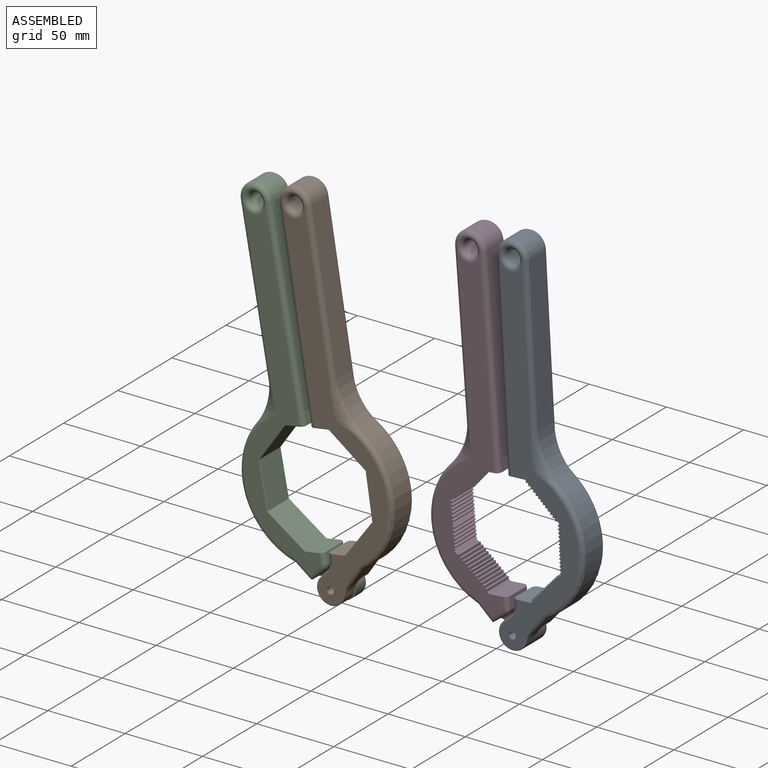
[diagram: assembled view]
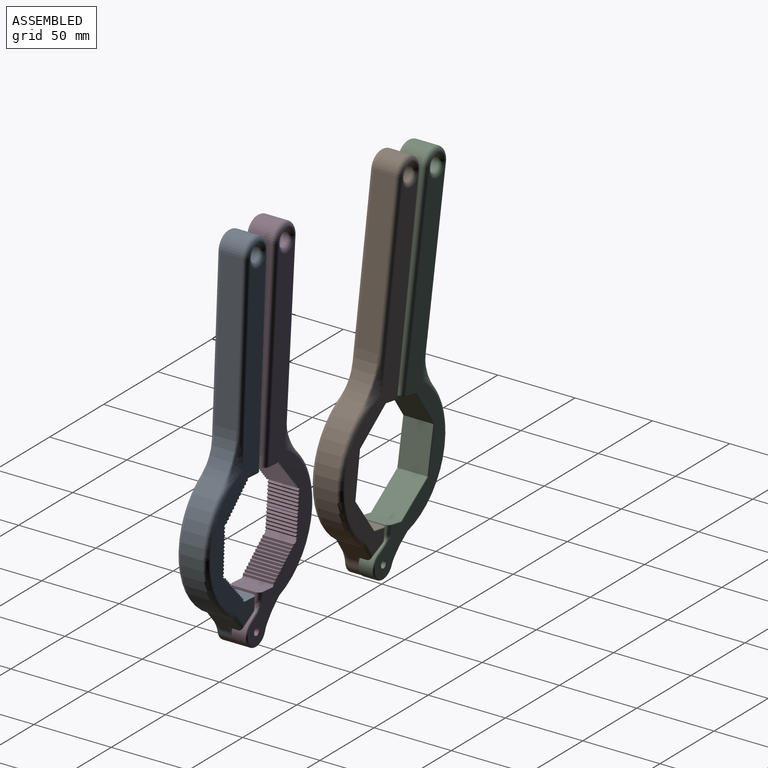
[diagram: assembled view, second angle]
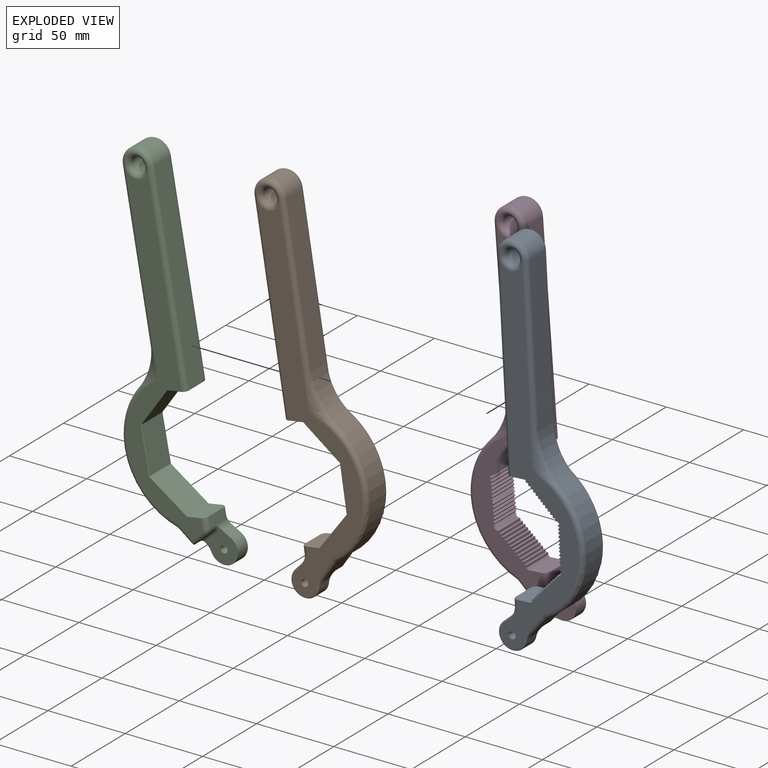
[diagram: exploded view]
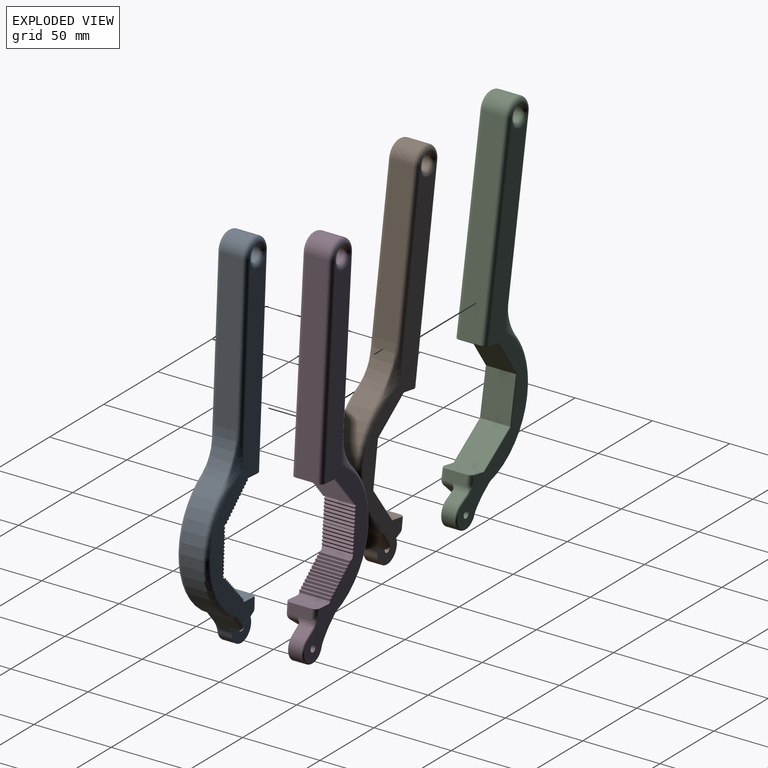
[diagram: exploded view, second angle]
ASSEMBLY  parts=4 mates=2
PART A: 135 faces, bbox 63.3x31.1x242 mm
  f0: plane 208.67x43.81mm, normal (0,-1,0), area 2878.3mm2, adj f3,f4,f5,f6,f7,f8,f9,f10
  f1: bspline ~29.03x14.84mm, area 120mm2, adj f105,f106,f119,f120
  f2: bspline ~29.03x14.84mm, area 119.6mm2, adj f113,f114,f120,f121
  f3: plane 20x0.88mm, normal (0.71,0,-0.71), area 24.8mm2, adj f0,f4,f97,f99
  f4: plane 20x1.54mm, normal (0,0,-1), area 30.7mm2, adj f0,f3,f5,f99
  f5: plane 20x1.54mm, normal (1,0,0), area 30.8mm2, adj f0,f4,f6,f99
  f6: plane 20x1.54mm, normal (0,0,-1), area 30.7mm2, adj f0,f5,f7,f99
  f7: plane 20x1.54mm, normal (1,0,0), area 30.8mm2, adj f0,f6,f8,f99
  f8: plane 20x1.54mm, normal (0,0,-1), area 30.7mm2, adj f0,f7,f9,f99
  f9: plane 20x1.54mm, normal (1,0,0), area 30.8mm2, adj f0,f8,f10,f99
  f10: plane 20x1.54mm, normal (0,0,-1), area 30.7mm2, adj f0,f9,f11,f99
  f11: plane 20x1.54mm, normal (1,0,0), area 30.8mm2, adj f0,f10,f12,f99
  f12: plane 20x1.54mm, normal (0,0,-1), area 30.7mm2, adj f0,f11,f13,f99
  f13: plane 20x1.54mm, normal (1,0,0), area 30.8mm2, adj f0,f12,f14,f99
  f14: plane 20x1.54mm, normal (0,0,-1), area 30.7mm2, adj f0,f13,f15,f99
  f15: plane 20x1.54mm, normal (1,0,0), area 30.8mm2, adj f0,f14,f16,f99
  f16: plane 20x1.31mm, normal (-0.17,0,-0.99), area 26.6mm2, adj f0,f15,f17,f99
  f17: plane 20x1.54mm, normal (1,0,0), area 30.8mm2, adj f0,f16,f18,f99
  f18: plane 20x1.54mm, normal (0,0,-1), area 30.7mm2, adj f0,f17,f19,f99
  f19: plane 20x1.54mm, normal (1,0,0), area 30.8mm2, adj f0,f18,f20,f99
  f20: plane 20x1.54mm, normal (0,0,-1), area 30.7mm2, adj f0,f19,f21,f99
  f21: plane 20x1.54mm, normal (1,0,0), area 30.8mm2, adj f0,f20,f22,f99
  f22: plane 20x1.54mm, normal (0,0,-1), area 30.7mm2, adj f0,f21,f23,f99
  f23: plane 20x1.54mm, normal (1,0,0), area 30.8mm2, adj f0,f22,f24,f99
  f24: plane 20x1.54mm, normal (0,0,-1), area 30.7mm2, adj f0,f23,f25,f99
  f25: plane 20x1.54mm, normal (1,0,0), area 30.8mm2, adj f0,f24,f26,f99
  f26: plane 20x1.54mm, normal (0,0,-1), area 30.7mm2, adj f0,f25,f27,f99
  f27: plane 20x1.54mm, normal (1,0,0), area 30.8mm2, adj f0,f26,f28,f99
  f28: plane 20x1.54mm, normal (0,0,-1), area 30.7mm2, adj f0,f27,f29,f99
  f29: plane 20x1.49mm, normal (1,0,0), area 29.7mm2, adj f0,f28,f30,f99
  f30: plane 20x0.06mm, normal (0.71,0,-0.71), area 1.8mm2, adj f0,f29,f31,f99
  f31: plane 20x12.44mm, normal (-0.01,0,-1), area 245mm2, adj f0,f30,f32,f99,f109,f117
  f32: plane 127.52x14mm, normal (1,0,-0.01), area 1785.4mm2, adj f31,f33,f109,f117
  f33: cylinder r=10.06mm len=20.12mm, axis (0,1,0), area 442.5mm2, adj f32,f34,f107,f116
  f34: plane 99.13x14mm, normal (-1,0,0.01), area 1387.9mm2, adj f33,f106,f114,f120
  f35: cylinder r=47.91mm len=78.58mm, axis (0,1,0), area 1311.3mm2, adj f36,f105,f113,f120
  f36: plane 14.14x11.53mm, normal (-0.74,0,-0.67), area 193.2mm2, adj f35,f37,f103,f104,f112,f122,f132
  f37: plane 10.26x6.57mm, normal (0.54,0,-0.84), area 63.3mm2, adj f36,f111,f126,f132
  f38: plane 14x6.96mm, normal (1,0,0.01), area 96.2mm2, adj f39,f110,f118,f124,f126,f134
  f39: plane 20.03x11.83mm, normal (0.01,0,1), area 232.1mm2, adj f0,f38,f40,f99,f110,f118
  f40: plane 20x1.07mm, normal (0.71,0,0.7), area 30.2mm2, adj f0,f39,f41,f99
  f41: plane 20x0mm, normal (0.01,0,1), area 0mm2, adj f0,f40,f42,f99
  f42: plane 20x1.54mm, normal (1,0,-0.01), area 30.7mm2, adj f0,f41,f43,f99
  f43: plane 20x1.54mm, normal (0.01,0,1), area 30.8mm2, adj f0,f42,f44,f99
  f44: plane 20x1.54mm, normal (1,0,-0.01), area 30.7mm2, adj f0,f43,f45,f99
  f45: plane 20x1.54mm, normal (0.01,0,1), area 30.8mm2, adj f0,f44,f46,f99
  f46: plane 20x1.54mm, normal (1,0,-0.01), area 30.7mm2, adj f0,f45,f47,f99
  f47: plane 20x1.54mm, normal (0.01,0,1), area 30.8mm2, adj f0,f46,f48,f99
  f48: plane 20x1.54mm, normal (1,0,-0.01), area 30.7mm2, adj f0,f47,f49,f99
  f49: plane 20x1.54mm, normal (0.01,0,1), area 30.8mm2, adj f0,f48,f50,f99
  f50: plane 20x1.54mm, normal (1,0,-0.01), area 30.7mm2, adj f0,f49,f51,f99
  f51: plane 20x1.54mm, normal (0.01,0,1), area 30.8mm2, adj f0,f50,f52,f99
  f52: plane 20x1.54mm, normal (1,0,-0.01), area 30.7mm2, adj f0,f51,f53,f99
  f53: plane 20x1.54mm, normal (0.01,0,1), area 30.8mm2, adj f0,f52,f54,f99
  f54: plane 20x1.31mm, normal (0.98,0,-0.18), area 26.6mm2, adj f0,f53,f55,f99
  f55: plane 20x1.54mm, normal (0.01,0,1), area 30.8mm2, adj f0,f54,f56,f99
  f56: plane 20x1.54mm, normal (1,0,-0.01), area 30.7mm2, adj f0,f55,f57,f99
  f57: plane 20x1.54mm, normal (0.01,0,1), area 30.8mm2, adj f0,f56,f58,f99
  f58: plane 20x1.54mm, normal (1,0,-0.01), area 30.7mm2, adj f0,f57,f59,f99
  f59: plane 20x1.54mm, normal (0.01,0,1), area 30.8mm2, adj f0,f58,f60,f99
  f60: plane 20x1.54mm, normal (1,0,-0.01), area 30.7mm2, adj f0,f59,f61,f99
  f61: plane 20x1.54mm, normal (0.01,0,1), area 30.8mm2, adj f0,f60,f62,f99
  f62: plane 20x1.54mm, normal (1,0,-0.01), area 30.7mm2, adj f0,f61,f63,f99
  f63: plane 20x1.54mm, normal (0.01,0,1), area 30.8mm2, adj f0,f62,f64,f99
  f64: plane 20x1.54mm, normal (1,0,-0.01), area 30.7mm2, adj f0,f63,f65,f99
  f65: plane 20x1.54mm, normal (0.01,0,1), area 30.8mm2, adj f0,f64,f66,f99
  f66: plane 20x1.55mm, normal (0.71,0,0.7), area 43.5mm2, adj f0,f65,f67,f99
  f67: plane 20x0.01mm, normal (-0.01,0,-1), area 0.2mm2, adj f0,f66,f68,f99
  f68: plane 20x0.05mm, normal (0.71,0,0.7), area 1.5mm2, adj f0,f67,f69,f99
  f69: plane 20x1.09mm, normal (0.14,0,-0.99), area 22mm2, adj f0,f68,f70,f99
  f70: plane 20x1.09mm, normal (0.71,0,0.71), area 30.8mm2, adj f0,f69,f71,f99
  f71: plane 20x1.09mm, normal (0.71,0,-0.71), area 30.7mm2, adj f0,f70,f72,f99
  f72: plane 20x1.09mm, normal (0.71,0,0.71), area 30.8mm2, adj f0,f71,f73,f99
  f73: plane 20x1.09mm, normal (0.71,0,-0.71), area 30.7mm2, adj f0,f72,f74,f99
  f74: plane 20x1.09mm, normal (0.71,0,0.71), area 30.8mm2, adj f0,f73,f75,f99
  f75: plane 20x1.09mm, normal (0.71,0,-0.71), area 30.7mm2, adj f0,f74,f76,f99
  f76: plane 20x1.09mm, normal (0.71,0,0.71), area 30.8mm2, adj f0,f75,f77,f99
  f77: plane 20x1.09mm, normal (0.71,0,-0.71), area 30.7mm2, adj f0,f76,f78,f99
  f78: plane 20x1.09mm, normal (0.71,0,0.71), area 30.8mm2, adj f0,f77,f79,f99
  f79: plane 20x1.09mm, normal (0.71,0,-0.71), area 30.7mm2, adj f0,f78,f80,f99
  f80: plane 20x1.09mm, normal (0.71,0,0.71), area 30.8mm2, adj f0,f79,f81,f99
  f81: plane 20x1.09mm, normal (0.71,0,-0.71), area 30.7mm2, adj f0,f80,f82,f99
  f82: plane 20x1.09mm, normal (0.71,0,0.71), area 30.8mm2, adj f0,f81,f83,f99
  f83: plane 20x1.09mm, normal (0.58,0,-0.82), area 26.6mm2, adj f0,f82,f84,f99
  f84: plane 20x1.09mm, normal (0.71,0,0.71), area 30.8mm2, adj f0,f83,f85,f99
  f85: plane 20x1.09mm, normal (0.71,0,-0.71), area 30.7mm2, adj f0,f84,f86,f99
  f86: plane 20x1.09mm, normal (0.71,0,0.71), area 30.8mm2, adj f0,f85,f87,f99
  f87: plane 20x1.09mm, normal (0.71,0,-0.71), area 30.7mm2, adj f0,f86,f88,f99
  f88: plane 20x1.09mm, normal (0.71,0,0.71), area 30.8mm2, adj f0,f87,f89,f99
  f89: plane 20x1.09mm, normal (0.71,0,-0.71), area 30.7mm2, adj f0,f88,f90,f99
  f90: plane 20x1.09mm, normal (0.71,0,0.71), area 30.8mm2, adj f0,f89,f91,f99
  f91: plane 20x1.09mm, normal (0.71,0,-0.71), area 30.7mm2, adj f0,f90,f92,f99
  f92: plane 20x1.09mm, normal (0.71,0,0.71), area 30.8mm2, adj f0,f91,f93,f99
  f93: plane 20x1.09mm, normal (0.71,0,-0.71), area 30.7mm2, adj f0,f92,f94,f99
  f94: plane 20x1.09mm, normal (0.71,0,0.71), area 30.8mm2, adj f0,f93,f95,f99
  f95: plane 20x1.09mm, normal (0.71,0,-0.71), area 30.7mm2, adj f0,f94,f96,f99
  f96: plane 20x1.09mm, normal (0.71,0,0.71), area 30.8mm2, adj f0,f95,f97,f99
  f97: plane 20x0.24mm, normal (0.71,0,-0.71), area 6.8mm2, adj f0,f3,f96,f99
  f98: cylinder r=4.75mm len=14mm, axis (0,1,0), area 418mm2, adj f108,f115
  f99: plane 226.22x54.66mm, normal (0,1,0), area 3154.1mm2, adj f3,f4,f5,f6,f7,f8,f9,f10
  f100: plane 8.8x5.68mm, normal (0.63,0,0.78), area 61.5mm2, adj f101,f103,f124,f125,f129
  f101: cylinder r=9mm len=17.79mm, axis (0,1,0), area 294.3mm2, adj f100,f103,f122,f123,f130
  f102: cylinder r=2.25mm len=9.8mm, axis (0,1,0), area 138.5mm2, adj f99,f103
  f103: plane 20.79x20.53mm, normal (0,-1,0), area 257.8mm2, adj f36,f100,f101,f102,f122,f124,f132,f133
  f104: cylinder r=3mm len=13.85mm, axis (0.67,0,-0.74), area 51.3mm2, adj f36,f99,f105,f123
  f105: torus R=44.91mm, axis (0,-1,0), area 462.4mm2, adj f1,f35,f99,f104,f119
  f106: cylinder r=3mm len=121.78mm, axis (-0.01,0,-1), area 502.5mm2, adj f1,f34,f99,f107,f108,f119
  f107: torus R=7.06mm, axis (0,-1,0), area 125mm2, adj f33,f106,f108,f109
  f108: torus R=7.75mm, axis (0,-1,0), area 163.6mm2, adj f98,f99,f106,f107,f109
  f109: cylinder r=3mm len=127.55mm, axis (0.01,0,1), area 600.4mm2, adj f31,f32,f99,f107,f108
  f110: cylinder r=3mm len=7.05mm, axis (0.01,0,-1), area 32.9mm2, adj f0,f38,f39,f127
  f111: cylinder r=3mm len=11.87mm, axis (-0.84,0,-0.54), area 51.4mm2, adj f0,f37,f112,f127
  f112: cylinder r=3mm len=11.53mm, axis (-0.67,0,0.74), area 53mm2, adj f0,f36,f111,f113
  f113: torus R=44.91mm, axis (0,-1,0), area 462.4mm2, adj f0,f2,f35,f112,f121
  f114: cylinder r=3mm len=121.78mm, axis (0.01,0,1), area 502.5mm2, adj f0,f2,f34,f115,f116,f121
  f115: torus R=7.75mm, axis (0,-1,0), area 163.6mm2, adj f0,f98,f114,f116,f117
  f116: torus R=7.06mm, axis (0,-1,0), area 125mm2, adj f33,f114,f115,f117
  f117: cylinder r=3mm len=127.55mm, axis (-0.01,0,-1), area 600.4mm2, adj f0,f31,f32,f115,f116
  f118: cylinder r=3mm len=6.91mm, axis (-0.01,0,1), area 21mm2, adj f38,f39,f99,f125
  f119: bspline ~12.9x8.21mm, area 19.5mm2, adj f1,f105,f106
  f120: cylinder r=40mm len=29.03mm, axis (0,1,0), area 457.9mm2, adj f1,f2,f34,f35
  f121: bspline ~12.9x8.21mm, area 19.7mm2, adj f2,f113,f114
  f122: cylinder r=10mm len=6.8mm, axis (0,1,0), area 34mm2, adj f36,f101,f103,f123
  f123: bspline ~14.37x13.93mm, area 19.8mm2, adj f101,f104,f122,f131
  f124: cylinder r=5mm len=8.8mm, axis (0,-1,0), area 32.5mm2, adj f38,f100,f103,f125,f133,f134
  f125: bspline ~10.41x8.07mm, area 14.3mm2, adj f100,f118,f124,f128
  f126: cylinder r=4mm len=5.2mm, axis (0,-1,0), area 21mm2, adj f37,f38,f127,f133
  f127: torus R=1mm, axis (0,-1,0), area 13.9mm2, adj f0,f110,f111,f126
  f128: bspline ~11.76x5.71mm, area 6.5mm2, adj f99,f125,f129
  f129: cylinder r=1mm len=6.3mm, axis (-0.78,0,0.63), area 11.4mm2, adj f99,f100,f128,f130
  f130: torus R=8mm, axis (0,-1,0), area 50.6mm2, adj f99,f101,f129,f131
  f131: bspline ~15.64x7.71mm, area 9mm2, adj f99,f123,f130
  f132: cylinder r=2mm len=11.33mm, axis (0.84,0,0.54), area 37.7mm2, adj f36,f37,f103,f133
  f133: torus R=6mm, axis (0,-1,0), area 10mm2, adj f103,f124,f126,f132,f134
  f134: cylinder r=2mm len=0.14mm, axis (-0.01,0,1), area 0mm2, adj f38,f124,f133
PART B: 70 faces, bbox 63.3x31.3x242 mm
  f0: plane 208.67x43.81mm, normal (0,-1,0), area 2780.1mm2, adj f27,f28,f29,f30,f31,f32,f34,f42
  f1: bspline ~29.03x14.84mm, area 120mm2, adj f22,f23,f36,f37
  f2: bspline ~29.03x14.84mm, area 119.6mm2, adj f30,f31,f37,f38
  f3: plane 14.14x11.53mm, normal (-0.74,0,-0.67), area 193.2mm2, adj f4,f14,f20,f21,f29,f55,f67
  f4: plane 10.26x6.57mm, normal (0.54,0,-0.84), area 63.3mm2, adj f3,f28,f60,f67
  f5: plane 14x6.47mm, normal (1,0,0.01), area 89.3mm2, adj f27,f35,f39,f57,f60,f69
  f6: plane 19x11.31mm, normal (0.01,0,1), area 212.2mm2, adj f7,f39,f40,f41,f42,f43
  f7: plane 21.02x20.75mm, normal (0.71,0,0.7), area 561.2mm2, adj f6,f8,f44,f45
  f8: plane 29.2x19mm, normal (1,0,0), area 554.8mm2, adj f7,f9,f46,f47
  f9: plane 20.95x20.9mm, normal (0.71,0,-0.71), area 562.3mm2, adj f8,f10,f48,f49
  f10: plane 19x11.94mm, normal (-0.01,0,-1), area 224.2mm2, adj f9,f50,f51,f52,f53,f54
  f11: plane 127.02x14mm, normal (1,0,-0.01), area 1778.4mm2, adj f12,f26,f34,f54
  f12: cylinder r=10.06mm len=20.12mm, axis (0,1,0), area 442.5mm2, adj f11,f13,f24,f33
  f13: plane 99.13x14mm, normal (-1,0,0.01), area 1387.9mm2, adj f12,f23,f31,f37
  f14: cylinder r=47.91mm len=78.58mm, axis (0,1,0), area 1311.3mm2, adj f3,f22,f30,f37
  f15: cylinder r=4.75mm len=14mm, axis (0,1,0), area 418mm2, adj f25,f32
  f16: plane 226.22x54.66mm, normal (0,1,0), area 3051mm2, adj f19,f21,f22,f23,f25,f26,f35,f43
  f17: plane 8.8x5.68mm, normal (0.63,0,0.78), area 61.5mm2, adj f18,f20,f57,f58,f64
  f18: cylinder r=9mm len=17.79mm, axis (0,1,0), area 294.3mm2, adj f17,f20,f55,f56,f65
  f19: cylinder r=2.25mm len=9.8mm, axis (0,1,0), area 138.5mm2, adj f16,f20
  f20: plane 20.79x20.53mm, normal (0,-1,0), area 257.8mm2, adj f3,f17,f18,f19,f55,f57,f67,f68
  f21: cylinder r=3mm len=13.85mm, axis (0.67,0,-0.74), area 51.3mm2, adj f3,f16,f22,f56
  f22: torus R=44.91mm, axis (0,-1,0), area 462.4mm2, adj f1,f14,f16,f21,f36
  f23: cylinder r=3mm len=121.78mm, axis (-0.01,0,-1), area 502.5mm2, adj f1,f13,f16,f24,f25,f36
  f24: torus R=7.06mm, axis (0,-1,0), area 125mm2, adj f12,f23,f25,f26
  f25: torus R=7.75mm, axis (0,-1,0), area 163.6mm2, adj f15,f16,f23,f24,f26
  f26: cylinder r=3mm len=127.05mm, axis (0.01,0,1), area 598.1mm2, adj f11,f16,f24,f25,f53
  f27: cylinder r=3mm len=6.55mm, axis (0.01,0,-1), area 30.6mm2, adj f0,f5,f40,f61
  f28: cylinder r=3mm len=11.87mm, axis (-0.84,0,-0.54), area 51.4mm2, adj f0,f4,f29,f61
  f29: cylinder r=3mm len=11.53mm, axis (-0.67,0,0.74), area 53mm2, adj f0,f3,f28,f30
  f30: torus R=44.91mm, axis (0,-1,0), area 462.4mm2, adj f0,f2,f14,f29,f38
  f31: cylinder r=3mm len=121.78mm, axis (0.01,0,1), area 502.5mm2, adj f0,f2,f13,f32,f33,f38
  f32: torus R=7.75mm, axis (0,-1,0), area 163.6mm2, adj f0,f15,f31,f33,f34
  f33: torus R=7.06mm, axis (0,-1,0), area 125mm2, adj f12,f31,f32,f34
  f34: cylinder r=3mm len=127.05mm, axis (-0.01,0,-1), area 598.1mm2, adj f0,f11,f32,f33,f52
  f35: cylinder r=3mm len=6.41mm, axis (-0.01,0,1), area 28.6mm2, adj f5,f16,f41,f58,f59
  f36: bspline ~12.9x8.21mm, area 19.5mm2, adj f1,f22,f23
  f37: cylinder r=40mm len=29.03mm, axis (0,1,0), area 457.9mm2, adj f1,f2,f13,f14
  f38: bspline ~12.9x8.21mm, area 19.7mm2, adj f2,f30,f31
  f39: cylinder r=0.5mm len=14mm, axis (0,-1,0), area 10.8mm2, adj f5,f6,f40,f41
  f40: bspline ~3x3mm, area 3.4mm2, adj f6,f27,f39,f42
  f41: bspline ~3x3mm, area 3.4mm2, adj f6,f35,f39,f43
  f42: cylinder r=0.5mm len=9.02mm, axis (1,0,-0.01), area 7mm2, adj f0,f6,f40,f44
  f43: cylinder r=0.5mm len=9.02mm, axis (-1,0,0.01), area 7mm2, adj f6,f16,f41,f45
  f44: cylinder r=0.5mm len=21.66mm, axis (0.7,0,-0.71), area 23.4mm2, adj f0,f7,f42,f46
  f45: cylinder r=0.5mm len=21.66mm, axis (-0.7,0,0.71), area 23.4mm2, adj f7,f16,f43,f47
  f46: cylinder r=0.5mm len=29.61mm, axis (0,0,-1), area 23.1mm2, adj f0,f8,f44,f48
  f47: cylinder r=0.5mm len=29.61mm, axis (0,0,1), area 23.1mm2, adj f8,f16,f45,f49
  f48: cylinder r=0.5mm len=21.6mm, axis (-0.71,0,-0.71), area 23.4mm2, adj f0,f9,f46,f50
  f49: cylinder r=0.5mm len=21.6mm, axis (0.71,0,0.71), area 23.4mm2, adj f9,f16,f47,f51
  f50: cylinder r=0.5mm len=9.66mm, axis (-1,0,0.01), area 7.5mm2, adj f0,f10,f48,f52
  f51: cylinder r=0.5mm len=9.66mm, axis (1,0,-0.01), area 7.5mm2, adj f10,f16,f49,f53
  f52: torus R=2.5mm, axis (-0.01,0,-1), area 3.5mm2, adj f10,f34,f50,f54
  f53: torus R=2.5mm, axis (-0.01,0,-1), area 3.5mm2, adj f10,f26,f51,f54
  f54: cylinder r=0.5mm len=14mm, axis (0,-1,0), area 11mm2, adj f10,f11,f52,f53
  f55: cylinder r=10mm len=6.8mm, axis (0,1,0), area 34mm2, adj f3,f18,f20,f56
  f56: bspline ~14.37x13.93mm, area 19.8mm2, adj f18,f21,f55,f66
  f57: cylinder r=5mm len=8.8mm, axis (0,-1,0), area 32.5mm2, adj f5,f17,f20,f58,f68,f69
  f58: bspline ~4.32x3mm, area 8.6mm2, adj f17,f35,f57,f59,f63
  f59: bspline ~4.76x4.7mm, area 3.2mm2, adj f35,f58,f62
  f60: cylinder r=4mm len=5.2mm, axis (0,-1,0), area 21mm2, adj f4,f5,f61,f68
  f61: torus R=1mm, axis (0,-1,0), area 13.9mm2, adj f0,f27,f28,f60
  f62: bspline ~3.27x2.74mm, area 1.5mm2, adj f16,f59,f63
  f63: bspline ~3.4x3.32mm, area 3.3mm2, adj f16,f58,f62,f64
  f64: cylinder r=1mm len=6.3mm, axis (-0.78,0,0.63), area 11.4mm2, adj f16,f17,f63,f65
  f65: torus R=8mm, axis (0,-1,0), area 50.6mm2, adj f16,f18,f64,f66
  f66: bspline ~15.64x7.71mm, area 9mm2, adj f16,f56,f65
  f67: cylinder r=2mm len=11.33mm, axis (0.84,0,0.54), area 37.7mm2, adj f3,f4,f20,f68
  f68: torus R=6mm, axis (0,-1,0), area 10mm2, adj f20,f57,f60,f67,f69
  f69: cylinder r=2mm len=0.14mm, axis (-0.01,0,1), area 0mm2, adj f5,f57,f68
PART C: same geometry as B
PART D: same geometry as A
PLACE A rot(axis=(-0.02,0,1),180deg) t=(149.73,34.34,-3.32)mm
PLACE B rot(axis=(-0.07,0,1),180deg) t=(33.71,34.5,-5.65)mm
PLACE C rot(axis=(0,-1,0),10.8deg) t=(-19.04,54.1,-14.61)mm
PLACE D rot(axis=(0,-1,0),5deg) t=(95.61,53.94,-6.87)mm
MATE revolute A.f101 <-> D.f101  axis (0,1,0) through (121.32,44.14,15.51)mm
MATE revolute C.f20 <-> B.f20  axis (0,-1,0) through (3.81,44.3,10.6)mm
